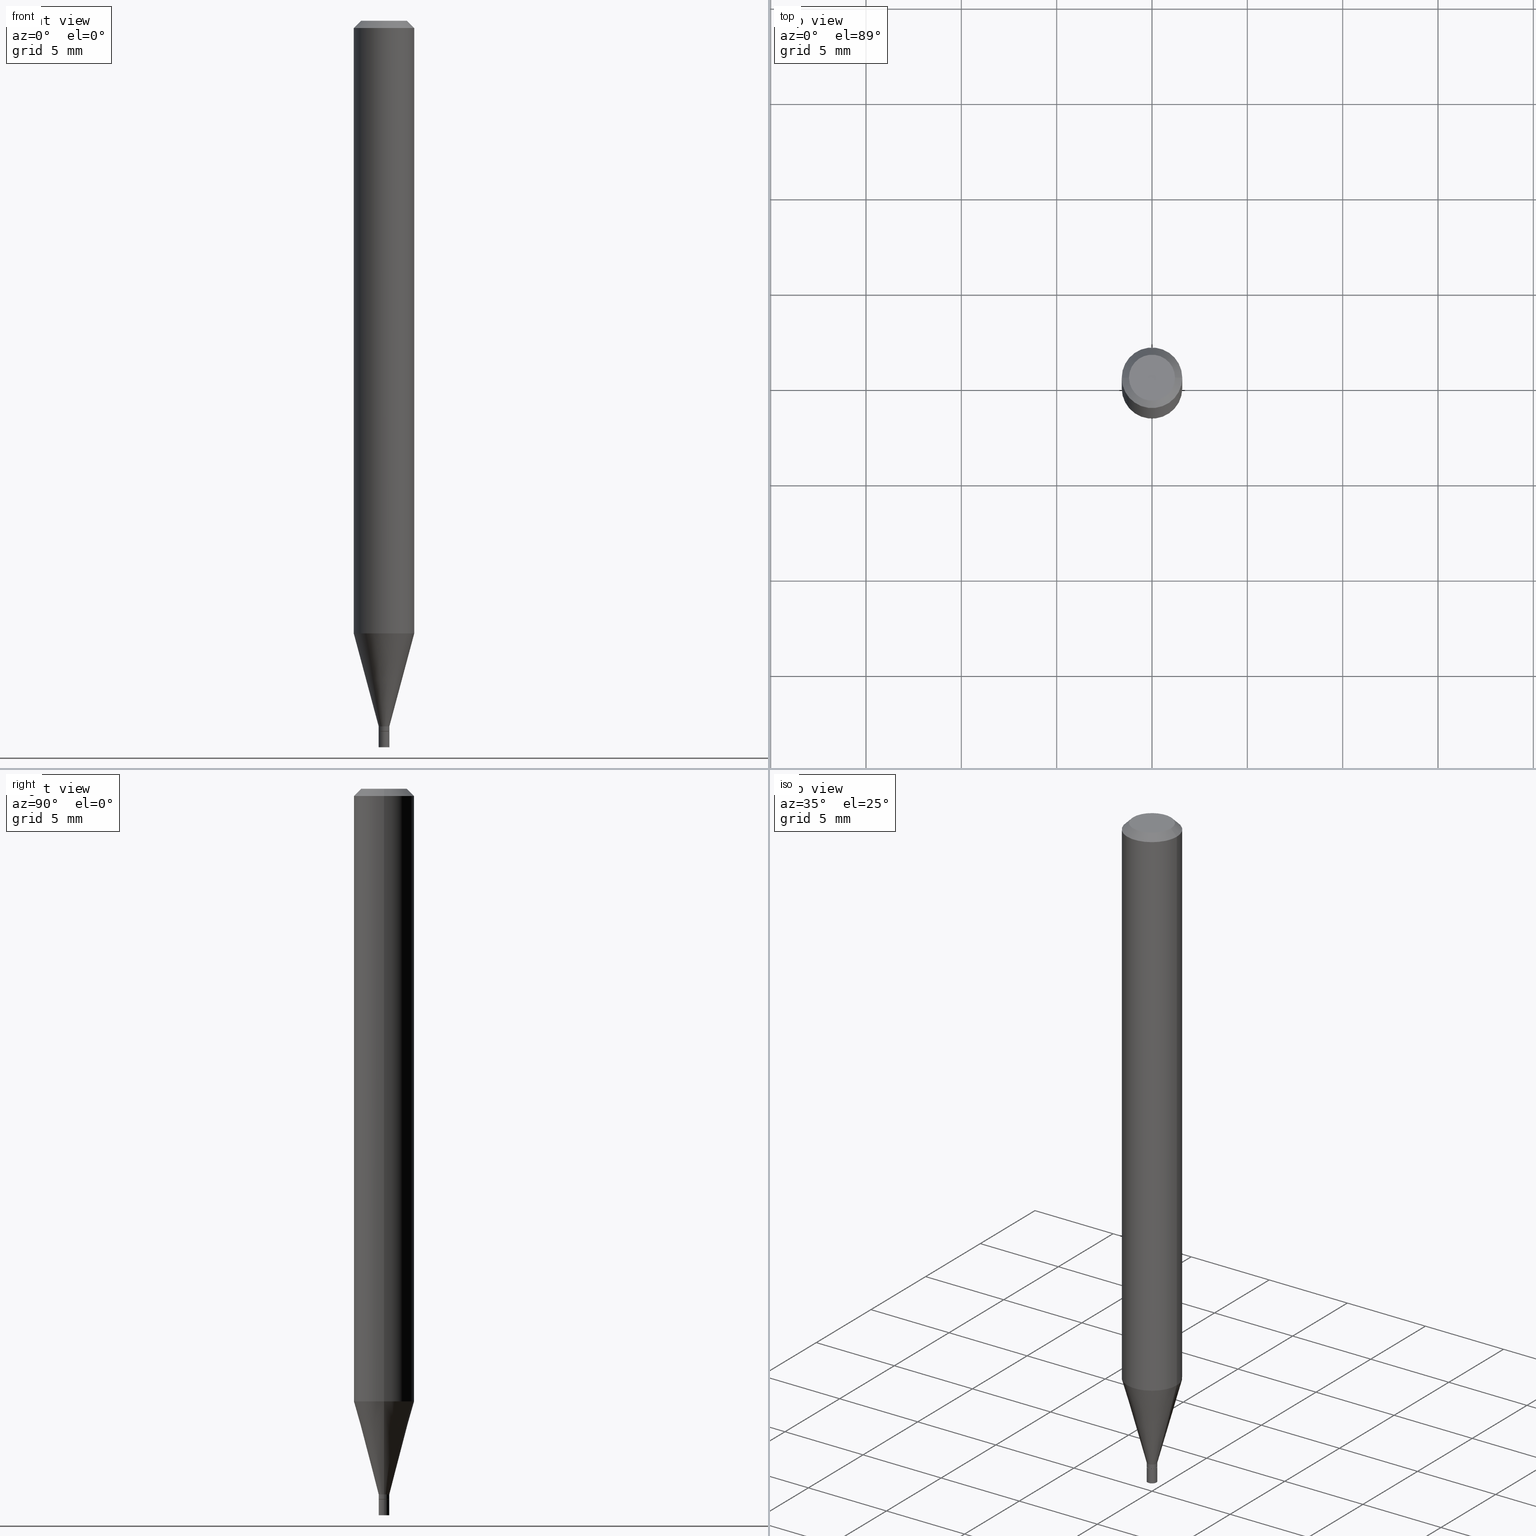
[diagram: canonical four-view strip — front | top / right | iso, engineering-drawing reading convention]
A machine part, canonical four-view strip (front | top / right | iso — engineering-drawing reading convention). The complete STEP part file that produces these views, byte-faithful:
ISO-10303-21;
HEADER;
FILE_DESCRIPTION (( 'STEP AP203' ),
    '1' );
FILE_NAME ('01102.STEP',
    '2024-03-19T22:55:37',
    ( '' ),
    ( '' ),
    'SwSTEP 2.0',
    'SolidWorks 2023',
    '' );
FILE_SCHEMA (( 'CONFIG_CONTROL_DESIGN' ));
ENDSEC;

DATA;
#1 = DIRECTION ( 'NONE',  ( 1.000000000000000000, -6.982962677686265922E-15, 4.876176775795936353E-29 ) ) ;
#2 = CARTESIAN_POINT ( 'NONE',  ( 3.587502738673595692E-29, -5.122003124082895786E-15, -1.467000000000000304 ) ) ;
#3 = LINE ( 'NONE', #109, #307 ) ;
#4 = CIRCLE ( 'NONE', #65, 0.01049999999999999892 ) ;
#5 = CC_DESIGN_SECURITY_CLASSIFICATION ( #430, ( #121 ) ) ;
#6 = ORIENTED_EDGE ( 'NONE', *, *, #397, .F. ) ;
#7 = DIRECTION ( 'NONE',  ( -2.445468806185136597E-29, 3.491481338843145583E-15, 1.000000000000000000 ) ) ;
#8 = EDGE_CURVE ( 'NONE', #72, #389, #338, .T. ) ;
#9 = ADVANCED_BREP_SHAPE_REPRESENTATION ( '01102', ( #213, #56, #275 ), #154 ) ;
#10 = DIRECTION ( 'NONE',  ( -0.7071067811865323627, 2.468850131082098105E-15, -0.7071067811865626718 ) ) ;
#11 = FACE_OUTER_BOUND ( 'NONE', #344, .T. ) ;
#12 = AXIS2_PLACEMENT_3D ( 'NONE', #89, #374, #52 ) ;
#13 = CARTESIAN_POINT ( 'NONE',  ( -0.01099999999999992130, -5.042097682479863192E-15, -1.466500000000000359 ) ) ;
#14 = ADVANCED_FACE ( 'NONE', ( #183 ), #438, .T. ) ;
#15 = CARTESIAN_POINT ( 'NONE',  ( -0.04749999999999999362, 3.578768372314221846E-16, 6.443424916547796954E-16 ) ) ;
#16 = PLANE ( 'NONE',  #416 ) ;
#17 = CONICAL_SURFACE ( 'NONE', #260, 0.01049999999999999892, 0.7853981633974718157 ) ;
#18 = DIRECTION ( 'NONE',  ( -2.445468806185136597E-29, 3.491481338843145583E-15, 1.000000000000000000 ) ) ;
#19 = ORIENTED_EDGE ( 'NONE', *, *, #143, .T. ) ;
#20 = EDGE_CURVE ( 'NONE', #419, #289, #420, .T. ) ;
#21 = PERSON_AND_ORGANIZATION ( #448, #196 ) ;
#22 = ORIENTED_EDGE ( 'NONE', *, *, #286, .F. ) ;
#23 = ORIENTED_EDGE ( 'NONE', *, *, #165, .F. ) ;
#24 = ORIENTED_EDGE ( 'NONE', *, *, #280, .T. ) ;
#25 = AXIS2_PLACEMENT_3D ( 'NONE', #343, #18, #410 ) ;
#26 = COORDINATED_UNIVERSAL_TIME_OFFSET ( 5, 0, .BEHIND. ) ;
#27 = ADVANCED_FACE ( 'NONE', ( #434 ), #17, .T. ) ;
#28 = ORIENTED_EDGE ( 'NONE', *, *, #306, .F. ) ;
#29 = CARTESIAN_POINT ( 'NONE',  ( 0.000000000000000000, 0.000000000000000000, 0.000000000000000000 ) ) ;
#30 = APPROVAL ( #447, 'UNSPECIFIED' ) ;
#31 = DIRECTION ( 'NONE',  ( -2.445468806185136597E-29, 3.491481338843145583E-15, 1.000000000000000000 ) ) ;
#32 = DIRECTION ( 'NONE',  ( 1.000000000000000000, -6.982962677686266711E-15, 4.876176775795935793E-29 ) ) ;
#33 = ORIENTED_EDGE ( 'NONE', *, *, #8, .T. ) ;
#34 = DIRECTION ( 'NONE',  ( -2.445468806185136877E-29, 3.491481338843145188E-15, 1.000000000000000000 ) ) ;
#35 = CONICAL_SURFACE ( 'NONE', #161, 0.01099999999999992130, 0.2617993877991500740 ) ;
#36 = ADVANCED_FACE ( 'NONE', ( #119 ), #247, .F. ) ;
#37 = PRODUCT_DEFINITION_SHAPE ( 'NONE', 'NONE',  #267 ) ;
#38 = CARTESIAN_POINT ( 'NONE',  ( 3.668203209277705088E-31, -5.237222008264718399E-17, -0.01499999999999999944 ) ) ;
#39 = CARTESIAN_POINT ( 'NONE',  ( 3.563048050611744147E-29, -5.087088310694462559E-15, -1.457000000000000073 ) ) ;
#40 = DIRECTION ( 'NONE',  ( 1.000000000000000000, -6.982962677686245411E-15, 0.000000000000000000 ) ) ;
#41 = CARTESIAN_POINT ( 'NONE',  ( 3.668203209277704895E-29, -5.237222008264718177E-15, -1.500000000000000222 ) ) ;
#42 = ORIENTED_EDGE ( 'NONE', *, *, #286, .T. ) ;
#43 = DIRECTION ( 'NONE',  ( -2.445468806185136597E-29, 3.491481338843145583E-15, 1.000000000000000000 ) ) ;
#44 = CLOSED_SHELL ( 'NONE', ( #219, #64, #55, #136, #210, #204, #83, #14, #323, #118, #27, #296 ) ) ;
#45 = CIRCLE ( 'NONE', #25, 0.06250000000000000000 ) ;
#46 = DIRECTION ( 'NONE',  ( 1.000000000000000000, -6.982962677686267499E-15, 4.852736867747366768E-29 ) ) ;
#47 = CC_DESIGN_DATE_AND_TIME_ASSIGNMENT ( #53, #236, ( #267 ) ) ;
#48 = DIRECTION ( 'NONE',  ( 1.000000000000000000, -6.982962677686295110E-15, 0.000000000000000000 ) ) ;
#49 = DIRECTION ( 'NONE',  ( -2.445468806185136877E-29, 3.491481338843145188E-15, 1.000000000000000000 ) ) ;
#50 = APPROVAL_PERSON_ORGANIZATION ( #199, #30, #171 ) ;
#51 = FACE_OUTER_BOUND ( 'NONE', #255, .T. ) ;
#52 = DIRECTION ( 'NONE',  ( 1.000000000000000000, -6.982962677686266711E-15, 4.876176775795935793E-29 ) ) ;
#53 = DATE_AND_TIME ( #454, #217 ) ;
#54 = DIRECTION ( 'NONE',  ( 1.000000000000000000, -6.982962677686265922E-15, 4.876176775795936353E-29 ) ) ;
#55 = ADVANCED_FACE ( 'NONE', ( #151 ), #383, .T. ) ;
#56 = MANIFOLD_SOLID_BREP ( 'Body-Move/Copy2[2]', #44 ) ;
#57 = PERSON_AND_ORGANIZATION_ROLE ( 'classification_officer' ) ;
#58 = CIRCLE ( 'NONE', #225, 0.01099999999999999936 ) ;
#59 = VERTEX_POINT ( 'NONE', #147 ) ;
#60 = PERSON_AND_ORGANIZATION ( #448, #196 ) ;
#61 = EDGE_LOOP ( 'NONE', ( #271, #459, #314, #381 ) ) ;
#62 = APPLICATION_CONTEXT ( 'configuration controlled 3d designs of mechanical parts and assemblies' ) ;
#63 = ORIENTED_EDGE ( 'NONE', *, *, #409, .T. ) ;
#64 = ADVANCED_FACE ( 'NONE', ( #287 ), #85, .T. ) ;
#65 = AXIS2_PLACEMENT_3D ( 'NONE', #290, #464, #361 ) ;
#66 = ORIENTED_EDGE ( 'NONE', *, *, #178, .T. ) ;
#67 = CYLINDRICAL_SURFACE ( 'NONE', #99, 0.06250000000000000000 ) ;
#68 = CYLINDRICAL_SURFACE ( 'NONE', #209, 0.01099999999999992130 ) ;
#69 = CARTESIAN_POINT ( 'NONE',  ( 3.668203209277705088E-31, -5.237222008264718399E-17, -0.01499999999999999944 ) ) ;
#70 = EDGE_CURVE ( 'NONE', #169, #422, #58, .T. ) ;
#71 = DIRECTION ( 'NONE',  ( -2.445468806185136877E-29, 3.491481338843145188E-15, 1.000000000000000000 ) ) ;
#72 = VERTEX_POINT ( 'NONE', #189 ) ;
#73 = CLOSED_SHELL ( 'NONE', ( #248, #36, #318, #231 ) ) ;
#74 = CC_DESIGN_PERSON_AND_ORGANIZATION_ASSIGNMENT ( #376, #313, ( #267 ) ) ;
#75 = FACE_OUTER_BOUND ( 'NONE', #149, .T. ) ;
#76 = CIRCLE ( 'NONE', #358, 0.01099999999999992130 ) ;
#77 = DIRECTION ( 'NONE',  ( 2.445468806185136597E-29, -3.491481338843145583E-15, -1.000000000000000000 ) ) ;
#78 = CARTESIAN_POINT ( 'NONE',  ( 0.06250000000000000000, -4.811533449433679005E-16, -0.01499999999999999944 ) ) ;
#79 = EDGE_LOOP ( 'NONE', ( #312, #460, #133, #320 ) ) ;
#80 = DIRECTION ( 'NONE',  ( -1.000000000000000000, 6.982962677686265922E-15, -4.876176775795935793E-29 ) ) ;
#81 = DIMENSIONAL_EXPONENTS ( 1.000000000000000000, 0.000000000000000000, 0.000000000000000000, 0.000000000000000000, 0.000000000000000000, 0.000000000000000000, 0.000000000000000000 ) ;
#82 = APPLICATION_CONTEXT ( 'configuration controlled 3d designs of mechanical parts and assemblies' ) ;
#83 = ADVANCED_FACE ( 'NONE', ( #431 ), #67, .T. ) ;
#84 = DIRECTION ( 'NONE',  ( 1.000000000000000000, -6.982962677686266711E-15, 4.876176775795935793E-29 ) ) ;
#85 = CONICAL_SURFACE ( 'NONE', #115, 0.01049999999999999892, 0.7853981633974718157 ) ;
#86 = CIRCLE ( 'NONE', #238, 0.01099999999999999936 ) ;
#87 = DIRECTION ( 'NONE',  ( 1.000000000000000000, -6.982962677686267499E-15, 4.852736867747366768E-29 ) ) ;
#88 =( NAMED_UNIT ( * ) SI_UNIT ( $, .STERADIAN. ) SOLID_ANGLE_UNIT ( ) );
#89 = CARTESIAN_POINT ( 'NONE',  ( 0.000000000000000000, 0.000000000000000000, 0.000000000000000000 ) ) ;
#90 = EDGE_CURVE ( 'NONE', #273, #59, #341, .T. ) ;
#91 = DIRECTION ( 'NONE',  ( -2.445468806185136597E-29, 3.491481338843145583E-15, 1.000000000000000000 ) ) ;
#92 = CONICAL_SURFACE ( 'NONE', #182, 0.01099999999999992130, 0.2617993877991500740 ) ;
#93 = DIRECTION ( 'NONE',  ( 1.000000000000000000, -6.982962677686295110E-15, 0.000000000000000000 ) ) ;
#94 = COORDINATED_UNIVERSAL_TIME_OFFSET ( 5, 0, .BEHIND. ) ;
#95 = CARTESIAN_POINT ( 'NONE',  ( -0.01049999999999999892, -5.044746909653973604E-15, -1.467000000000000304 ) ) ;
#96 = PRODUCT ( '01102', '01102', '', ( #241 ) ) ;
#97 = DATE_AND_TIME ( #132, #283 ) ;
#98 = VERTEX_POINT ( 'NONE', #440 ) ;
#99 = AXIS2_PLACEMENT_3D ( 'NONE', #299, #91, #84 ) ;
#100 = ORIENTED_EDGE ( 'NONE', *, *, #188, .F. ) ;
#101 = CALENDAR_DATE ( 2024, 19, 3 ) ;
#102 = ORIENTED_EDGE ( 'NONE', *, *, #364, .F. ) ;
#103 = EDGE_CURVE ( 'NONE', #351, #105, #76, .T. ) ;
#104 = DATE_AND_TIME ( #101, #316 ) ;
#105 = VERTEX_POINT ( 'NONE', #13 ) ;
#106 = AXIS2_PLACEMENT_3D ( 'NONE', #251, #426, #294 ) ;
#107 = EDGE_LOOP ( 'NONE', ( #23, #19, #240, #380 ) ) ;
#108 = DIRECTION ( 'NONE',  ( -2.445468806185136597E-29, 3.491481338843145583E-15, 1.000000000000000000 ) ) ;
#109 = CARTESIAN_POINT ( 'NONE',  ( 0.01049999999999999892, -5.195324232198601302E-15, -1.467000000000000304 ) ) ;
#110 = DIRECTION ( 'NONE',  ( -1.000000000000000000, 6.982962677686266711E-15, 0.000000000000000000 ) ) ;
#111 = APPLICATION_PROTOCOL_DEFINITION ( 'international standard', 'config_control_design', 1994, #62 ) ;
#112 = DIRECTION ( 'NONE',  ( 1.000000000000000000, -6.982962677686295110E-15, 0.000000000000000000 ) ) ;
#113 = VERTEX_POINT ( 'NONE', #195 ) ;
#114 = DIRECTION ( 'NONE',  ( 1.000000000000000000, -6.982962677686245411E-15, 0.000000000000000000 ) ) ;
#115 = AXIS2_PLACEMENT_3D ( 'NONE', #211, #391, #292 ) ;
#116 = EDGE_LOOP ( 'NONE', ( #216, #145, #284, #395 ) ) ;
#117 = CYLINDRICAL_SURFACE ( 'NONE', #242, 0.01099999999999999936 ) ;
#118 = ADVANCED_FACE ( 'NONE', ( #123 ), #298, .F. ) ;
#119 = FACE_OUTER_BOUND ( 'NONE', #205, .T. ) ;
#120 = CARTESIAN_POINT ( 'NONE',  ( 3.563048050611744147E-29, -5.087088310694462559E-15, -1.457000000000000073 ) ) ;
#121 = PRODUCT_DEFINITION_FORMATION_WITH_SPECIFIED_SOURCE ( 'ANY', '', #96, .NOT_KNOWN. ) ;
#122 = EDGE_CURVE ( 'NONE', #131, #389, #162, .T. ) ;
#123 = FACE_OUTER_BOUND ( 'NONE', #257, .T. ) ;
#124 = DIRECTION ( 'NONE',  ( -2.445468806185136877E-29, 3.491481338843145188E-15, 1.000000000000000000 ) ) ;
#125 = APPROVAL ( #202, 'UNSPECIFIED' ) ;
#126 = CARTESIAN_POINT ( 'NONE',  ( -0.06250000000000000000, 4.440892098500626162E-16, -3.074334431409316114E-30 ) ) ;
#127 = AXIS2_PLACEMENT_3D ( 'NONE', #302, #157, #193 ) ;
#128 = COORDINATED_UNIVERSAL_TIME_OFFSET ( 5, 0, .BEHIND. ) ;
#129 = CARTESIAN_POINT ( 'NONE',  ( -1.575719463841376315E-44, 2.249709785436367094E-30, 6.443424916547820620E-16 ) ) ;
#130 = CALENDAR_DATE ( 2024, 19, 3 ) ;
#131 = VERTEX_POINT ( 'NONE', #15 ) ;
#132 = CALENDAR_DATE ( 2024, 19, 3 ) ;
#133 = ORIENTED_EDGE ( 'NONE', *, *, #103, .F. ) ;
#134 = DATE_AND_TIME ( #451, #184 ) ;
#135 = AXIS2_PLACEMENT_3D ( 'NONE', #69, #31, #362 ) ;
#136 = ADVANCED_FACE ( 'NONE', ( #51 ), #197, .T. ) ;
#137 = CC_DESIGN_APPROVAL ( #30, ( #267 ) ) ;
#138 = ORIENTED_EDGE ( 'NONE', *, *, #188, .T. ) ;
#139 = DIRECTION ( 'NONE',  ( 0.000000000000000000, 0.000000000000000000, 1.000000000000000000 ) ) ;
#140 = APPROVAL_STATUS ( 'not_yet_approved' ) ;
#141 = ORIENTED_EDGE ( 'NONE', *, *, #364, .T. ) ;
#142 = DIRECTION ( 'NONE',  ( 1.000000000000000000, 0.000000000000000000, 0.000000000000000000 ) ) ;
#143 = EDGE_CURVE ( 'NONE', #155, #59, #266, .T. ) ;
#144 = VECTOR ( 'NONE', #124, 39.37007874015748143 ) ;
#145 = ORIENTED_EDGE ( 'NONE', *, *, #301, .T. ) ;
#146 = DIRECTION ( 'NONE',  ( -2.445468806185136597E-29, 3.491481338843145583E-15, 1.000000000000000000 ) ) ;
#147 = CARTESIAN_POINT ( 'NONE',  ( 0.06250000000000000000, -4.852458611912431766E-15, -1.264799383410203149 ) ) ;
#148 = LINE ( 'NONE', #461, #359 ) ;
#149 = EDGE_LOOP ( 'NONE', ( #458, #66 ) ) ;
#150 = DIRECTION ( 'NONE',  ( -2.445468806185136597E-29, 3.491481338843145583E-15, 1.000000000000000000 ) ) ;
#151 = FACE_OUTER_BOUND ( 'NONE', #243, .T. ) ;
#152 = CARTESIAN_POINT ( 'NONE',  ( 3.587502738673595692E-29, -5.122003124082895786E-15, -1.467000000000000304 ) ) ;
#153 = CIRCLE ( 'NONE', #408, 0.01099999999999999936 ) ;
#154 =( GEOMETRIC_REPRESENTATION_CONTEXT ( 3 ) GLOBAL_UNCERTAINTY_ASSIGNED_CONTEXT ( ( #385 ) ) GLOBAL_UNIT_ASSIGNED_CONTEXT ( ( #297, #258, #88 ) ) REPRESENTATION_CONTEXT ( 'NONE', 'WORKASPACE' ) );
#155 = VERTEX_POINT ( 'NONE', #442 ) ;
#156 = CARTESIAN_POINT ( 'NONE',  ( 0.01099999999999999936, -7.681258945454891804E-17, 5.363794453375529652E-31 ) ) ;
#157 = DIRECTION ( 'NONE',  ( -2.445468806185136597E-29, 3.491481338843145583E-15, 1.000000000000000000 ) ) ;
#158 = EDGE_CURVE ( 'NONE', #59, #155, #166, .T. ) ;
#159 = CARTESIAN_POINT ( 'NONE',  ( 0.000000000000000000, 0.000000000000000000, 0.000000000000000000 ) ) ;
#160 = LENGTH_MEASURE_WITH_UNIT ( LENGTH_MEASURE( 0.02539999999999999897 ), #357 );
#161 = AXIS2_PLACEMENT_3D ( 'NONE', #120, #232, #93 ) ;
#162 = LINE ( 'NONE', #372, #274 ) ;
#163 = DIRECTION ( 'NONE',  ( -2.445468806185136597E-29, 3.491481338843145583E-15, 1.000000000000000000 ) ) ;
#164 = CARTESIAN_POINT ( 'NONE',  ( 7.681258945458479888E-17, 0.01099999999999487672, -1.467000000000000304 ) ) ;
#165 = EDGE_CURVE ( 'NONE', #155, #389, #441, .T. ) ;
#166 = CIRCLE ( 'NONE', #127, 0.06250000000000000000 ) ;
#167 = AXIS2_PLACEMENT_3D ( 'NONE', #39, #187, #288 ) ;
#168 = DIRECTION ( 'NONE',  ( -2.445468806185136597E-29, 3.491481338843145583E-15, 1.000000000000000000 ) ) ;
#169 = VERTEX_POINT ( 'NONE', #262 ) ;
#170 = ORIENTED_EDGE ( 'NONE', *, *, #237, .F. ) ;
#171 = APPROVAL_ROLE ( '' ) ;
#172 = ORIENTED_EDGE ( 'NONE', *, *, #20, .T. ) ;
#173 = PERSON_AND_ORGANIZATION ( #448, #196 ) ;
#174 = PRODUCT_RELATED_PRODUCT_CATEGORY ( 'detail', '', ( #96 ) ) ;
#175 = PERSON_AND_ORGANIZATION ( #448, #196 ) ;
#176 = CIRCLE ( 'NONE', #250, 0.04749999999999999362 ) ;
#177 = EDGE_LOOP ( 'NONE', ( #100, #24, #63, #355 ) ) ;
#178 = EDGE_CURVE ( 'NONE', #113, #131, #378, .T. ) ;
#179 = ORIENTED_EDGE ( 'NONE', *, *, #20, .F. ) ;
#180 = DIRECTION ( 'NONE',  ( 0.7071067811865323627, -7.319954787623203981E-15, -0.7071067811865626718 ) ) ;
#181 = APPROVAL_DATE_TIME ( #104, #206 ) ;
#182 = AXIS2_PLACEMENT_3D ( 'NONE', #224, #337, #263 ) ;
#183 = FACE_OUTER_BOUND ( 'NONE', #279, .T. ) ;
#184 = LOCAL_TIME ( 18, 55, 37.00000000000000000, #346 ) ;
#185 = DIRECTION ( 'NONE',  ( -2.445468806185136597E-29, 3.491481338843145583E-15, 1.000000000000000000 ) ) ;
#186 = CARTESIAN_POINT ( 'NONE',  ( 3.668203209277704895E-29, -5.237222008264718177E-15, -1.500000000000000222 ) ) ;
#187 = DIRECTION ( 'NONE',  ( -2.445468806185136597E-29, 3.491481338843145583E-15, 1.000000000000000000 ) ) ;
#188 = EDGE_CURVE ( 'NONE', #105, #98, #259, .T. ) ;
#189 = CARTESIAN_POINT ( 'NONE',  ( 0.06250000000000000000, -4.888073874380388472E-16, -0.01499999999999999944 ) ) ;
#190 = DIRECTION ( 'NONE',  ( 2.438088387897960049E-29, -3.491481338843145188E-15, -1.000000000000000000 ) ) ;
#191 = ORIENTED_EDGE ( 'NONE', *, *, #178, .F. ) ;
#192 = DIRECTION ( 'NONE',  ( -2.445468806185136877E-29, 3.491481338843145188E-15, 1.000000000000000000 ) ) ;
#193 = DIRECTION ( 'NONE',  ( 1.000000000000000000, -6.982962677686262766E-15, 0.000000000000000000 ) ) ;
#194 = CARTESIAN_POINT ( 'NONE',  ( 3.093027438211846075E-29, -4.416023444557040885E-15, -1.264799383410203149 ) ) ;
#195 = CARTESIAN_POINT ( 'NONE',  ( 0.04749999999999999362, -4.035134999187566790E-16, 6.443424916547846258E-16 ) ) ;
#196 = ORGANIZATION ( 'UNSPECIFIED', 'UNSPECIFIED', '' ) ;
#197 = CYLINDRICAL_SURFACE ( 'NONE', #300, 0.06250000000000000000 ) ;
#198 = CARTESIAN_POINT ( 'NONE',  ( -0.01099999999999992130, 7.815970093361046124E-17, -5.410828599280358539E-31 ) ) ;
#199 = PERSON_AND_ORGANIZATION ( #448, #196 ) ;
#200 = FACE_OUTER_BOUND ( 'NONE', #220, .T. ) ;
#201 = ORIENTED_EDGE ( 'NONE', *, *, #465, .F. ) ;
#202 = APPROVAL_STATUS ( 'not_yet_approved' ) ;
#203 = ORIENTED_EDGE ( 'NONE', *, *, #122, .T. ) ;
#204 = ADVANCED_FACE ( 'NONE', ( #227 ), #92, .T. ) ;
#205 = EDGE_LOOP ( 'NONE', ( #352, #22 ) ) ;
#206 = APPROVAL ( #140, 'UNSPECIFIED' ) ;
#207 = DATE_AND_TIME ( #130, #379 ) ;
#208 = EDGE_LOOP ( 'NONE', ( #6, #42, #398, #179 ) ) ;
#209 = AXIS2_PLACEMENT_3D ( 'NONE', #331, #7, #32 ) ;
#210 = ADVANCED_FACE ( 'NONE', ( #407 ), #35, .T. ) ;
#211 = CARTESIAN_POINT ( 'NONE',  ( 3.587502738673595692E-29, -5.122003124082895786E-15, -1.467000000000000304 ) ) ;
#212 = CARTESIAN_POINT ( 'NONE',  ( -0.01099999999999999936, -5.101452865240196680E-15, -1.500000000000000222 ) ) ;
#213 = MANIFOLD_SOLID_BREP ( 'Body-Move/Copy2[1]', #73 ) ;
#214 = ORIENTED_EDGE ( 'NONE', *, *, #165, .T. ) ;
#215 = DIRECTION ( 'NONE',  ( 1.000000000000000000, -6.982962677686245411E-15, 0.000000000000000000 ) ) ;
#216 = ORIENTED_EDGE ( 'NONE', *, *, #401, .T. ) ;
#217 = LOCAL_TIME ( 18, 55, 37.00000000000000000, #128 ) ;
#218 = CARTESIAN_POINT ( 'NONE',  ( -0.01099999999999992130, -5.008928609760852258E-15, -1.457000000000000073 ) ) ;
#219 = ADVANCED_FACE ( 'NONE', ( #11 ), #403, .T. ) ;
#220 = EDGE_LOOP ( 'NONE', ( #319, #455, #310, #415 ) ) ;
#221 = LINE ( 'NONE', #433, #345 ) ;
#222 = ORIENTED_EDGE ( 'NONE', *, *, #409, .F. ) ;
#223 = DIRECTION ( 'NONE',  ( -0.2588190451025213501, 5.211531920934551042E-15, 0.9659258262890682012 ) ) ;
#224 = CARTESIAN_POINT ( 'NONE',  ( 3.563048050611744147E-29, -5.087088310694462559E-15, -1.457000000000000073 ) ) ;
#225 = AXIS2_PLACEMENT_3D ( 'NONE', #186, #328, #40 ) ;
#226 = APPROVAL_PERSON_ORGANIZATION ( #276, #206, #278 ) ;
#227 = FACE_OUTER_BOUND ( 'NONE', #61, .T. ) ;
#228 = DIRECTION ( 'NONE',  ( -2.445468806185136597E-29, 3.491481338843145583E-15, 1.000000000000000000 ) ) ;
#229 = DIRECTION ( 'NONE',  ( -2.438088387897960049E-29, 3.491481338843145188E-15, 1.000000000000000000 ) ) ;
#230 = AXIS2_PLACEMENT_3D ( 'NONE', #269, #375, #309 ) ;
#231 = ADVANCED_FACE ( 'NONE', ( #342 ), #16, .F. ) ;
#232 = DIRECTION ( 'NONE',  ( -2.445468806185136597E-29, 3.491481338843145583E-15, 1.000000000000000000 ) ) ;
#233 = CC_DESIGN_PERSON_AND_ORGANIZATION_ASSIGNMENT ( #60, #308, ( #121 ) ) ;
#234 = PERSON_AND_ORGANIZATION_ROLE ( 'creator' ) ;
#235 = CYLINDRICAL_SURFACE ( 'NONE', #429, 0.01099999999999999936 ) ;
#236 = DATE_TIME_ROLE ( 'creation_date' ) ;
#237 = EDGE_CURVE ( 'NONE', #131, #113, #176, .T. ) ;
#238 = AXIS2_PLACEMENT_3D ( 'NONE', #152, #150, #114 ) ;
#239 = VERTEX_POINT ( 'NONE', #95 ) ;
#240 = ORIENTED_EDGE ( 'NONE', *, *, #465, .T. ) ;
#241 = MECHANICAL_CONTEXT ( 'NONE', #82, 'mechanical' ) ;
#242 = AXIS2_PLACEMENT_3D ( 'NONE', #329, #428, #1 ) ;
#243 = EDGE_LOOP ( 'NONE', ( #191, #141, #33, #281 ) ) ;
#244 = CARTESIAN_POINT ( 'NONE',  ( 3.316907271900976096E-16, 0.04749999999999999362, 1.563258822323416346E-16 ) ) ;
#245 = DIRECTION ( 'NONE',  ( 1.000000000000000000, -6.982962677686265922E-15, 4.876176775795935793E-29 ) ) ;
#246 = LINE ( 'NONE', #78, #439 ) ;
#247 = PLANE ( 'NONE',  #282 ) ;
#248 = ADVANCED_FACE ( 'NONE', ( #200 ), #235, .T. ) ;
#249 = CARTESIAN_POINT ( 'NONE',  ( 0.01099999999999992130, -7.681258945454838802E-17, 5.363794453375491117E-31 ) ) ;
#250 = AXIS2_PLACEMENT_3D ( 'NONE', #129, #400, #46 ) ;
#251 = CARTESIAN_POINT ( 'NONE',  ( 3.668203209277705088E-31, -5.237222008264718399E-17, -0.01499999999999999944 ) ) ;
#252 = APPROVAL_PERSON_ORGANIZATION ( #317, #125, #311 ) ;
#253 = DIRECTION ( 'NONE',  ( 1.000000000000000000, -6.982962677686287221E-15, 0.000000000000000000 ) ) ;
#254 = SHAPE_DEFINITION_REPRESENTATION ( #37, #9 ) ;
#255 = EDGE_LOOP ( 'NONE', ( #333, #214, #386, #201 ) ) ;
#256 = CARTESIAN_POINT ( 'NONE',  ( 0.01099999999999992130, -5.197069972868022806E-15, -1.466500000000000359 ) ) ;
#257 = EDGE_LOOP ( 'NONE', ( #28, #321 ) ) ;
#258 =( NAMED_UNIT ( * ) PLANE_ANGLE_UNIT ( ) SI_UNIT ( $, .RADIAN. ) );
#259 = LINE ( 'NONE', #198, #144 ) ;
#260 = AXIS2_PLACEMENT_3D ( 'NONE', #2, #108, #326 ) ;
#261 = VECTOR ( 'NONE', #34, 39.37007874015748143 ) ;
#262 = CARTESIAN_POINT ( 'NONE',  ( 0.01099999999999999936, -5.314034597719267489E-15, -1.500000000000000222 ) ) ;
#263 = DIRECTION ( 'NONE',  ( 1.000000000000000000, -6.982962677686295110E-15, 0.000000000000000000 ) ) ;
#264 = EDGE_CURVE ( 'NONE', #98, #273, #315, .T. ) ;
#265 = DIRECTION ( 'NONE',  ( 1.000000000000000000, -6.982962677686266711E-15, 4.876176775795935793E-29 ) ) ;
#266 = CIRCLE ( 'NONE', #324, 0.06250000000000000000 ) ;
#267 = PRODUCT_DEFINITION ( 'UNKNOWN', '', #121, #404 ) ;
#268 = APPROVAL_DATE_TIME ( #207, #125 ) ;
#269 = CARTESIAN_POINT ( 'NONE',  ( 3.563048050611744147E-29, -5.087088310694462559E-15, -1.457000000000000073 ) ) ;
#270 = EDGE_CURVE ( 'NONE', #389, #72, #45, .T. ) ;
#271 = ORIENTED_EDGE ( 'NONE', *, *, #301, .F. ) ;
#272 = APPROVAL_DATE_TIME ( #97, #30 ) ;
#273 = VERTEX_POINT ( 'NONE', #388 ) ;
#274 = VECTOR ( 'NONE', #10, 39.37007874015748143 ) ;
#275 = AXIS2_PLACEMENT_3D ( 'NONE', #29, #139, #142 ) ;
#276 = PERSON_AND_ORGANIZATION ( #448, #196 ) ;
#277 = ORIENTED_EDGE ( 'NONE', *, *, #270, .T. ) ;
#278 = APPROVAL_ROLE ( '' ) ;
#279 = EDGE_LOOP ( 'NONE', ( #102, #170, #203, #277 ) ) ;
#280 = EDGE_CURVE ( 'NONE', #105, #351, #291, .T. ) ;
#281 = ORIENTED_EDGE ( 'NONE', *, *, #122, .F. ) ;
#282 = AXIS2_PLACEMENT_3D ( 'NONE', #466, #463, #245 ) ;
#283 = LOCAL_TIME ( 18, 55, 37.00000000000000000, #94 ) ;
#284 = ORIENTED_EDGE ( 'NONE', *, *, #158, .F. ) ;
#285 = DIRECTION ( 'NONE',  ( -0.7071067811865642261, 7.493145998870414114E-15, 0.7071067811865309194 ) ) ;
#286 = EDGE_CURVE ( 'NONE', #422, #169, #153, .T. ) ;
#287 = FACE_OUTER_BOUND ( 'NONE', #79, .T. ) ;
#288 = DIRECTION ( 'NONE',  ( 1.000000000000000000, -6.982962677686295110E-15, 0.000000000000000000 ) ) ;
#289 = VERTEX_POINT ( 'NONE', #392 ) ;
#290 = CARTESIAN_POINT ( 'NONE',  ( 3.587502738673595692E-29, -5.122003124082895786E-15, -1.467000000000000304 ) ) ;
#291 = CIRCLE ( 'NONE', #350, 0.01099999999999992130 ) ;
#292 = DIRECTION ( 'NONE',  ( 1.000000000000000000, -6.982962677686287221E-15, 0.000000000000000000 ) ) ;
#293 = CARTESIAN_POINT ( 'NONE',  ( -0.01099999999999999936, -5.101452865240196680E-15, -1.467000000000000304 ) ) ;
#294 = DIRECTION ( 'NONE',  ( -1.000000000000000000, 6.982962677686266711E-15, 0.000000000000000000 ) ) ;
#295 = LINE ( 'NONE', #363, #340 ) ;
#296 = ADVANCED_FACE ( 'NONE', ( #322 ), #68, .T. ) ;
#297 =( CONVERSION_BASED_UNIT ( 'INCH', #160 ) LENGTH_UNIT ( ) NAMED_UNIT ( #81 ) );
#298 = PLANE ( 'NONE',  #332 ) ;
#299 = CARTESIAN_POINT ( 'NONE',  ( 0.000000000000000000, 0.000000000000000000, 0.000000000000000000 ) ) ;
#300 = AXIS2_PLACEMENT_3D ( 'NONE', #159, #402, #265 ) ;
#301 = EDGE_CURVE ( 'NONE', #98, #155, #435, .T. ) ;
#302 = CARTESIAN_POINT ( 'NONE',  ( 3.093027438211846075E-29, -4.416023444557040885E-15, -1.264799383410203149 ) ) ;
#303 = CARTESIAN_POINT ( 'NONE',  ( 0.01099999999999992130, -5.163900900149011871E-15, -1.457000000000000073 ) ) ;
#304 = DIRECTION ( 'NONE',  ( 2.438088387897960049E-29, -3.491481338843145188E-15, -1.000000000000000000 ) ) ;
#305 = AXIS2_PLACEMENT_3D ( 'NONE', #330, #360, #424 ) ;
#306 = EDGE_CURVE ( 'NONE', #452, #239, #4, .T. ) ;
#307 = VECTOR ( 'NONE', #327, 39.37007874015748143 ) ;
#308 = PERSON_AND_ORGANIZATION_ROLE ( 'design_supplier' ) ;
#309 = DIRECTION ( 'NONE',  ( 1.000000000000000000, -6.982962677686295110E-15, 0.000000000000000000 ) ) ;
#310 = ORIENTED_EDGE ( 'NONE', *, *, #414, .F. ) ;
#311 = APPROVAL_ROLE ( '' ) ;
#312 = ORIENTED_EDGE ( 'NONE', *, *, #306, .T. ) ;
#313 = PERSON_AND_ORGANIZATION_ROLE ( 'creator' ) ;
#314 = ORIENTED_EDGE ( 'NONE', *, *, #90, .T. ) ;
#315 = CIRCLE ( 'NONE', #230, 0.01099999999999992130 ) ;
#316 = LOCAL_TIME ( 18, 55, 37.00000000000000000, #417 ) ;
#317 = PERSON_AND_ORGANIZATION ( #448, #196 ) ;
#318 = ADVANCED_FACE ( 'NONE', ( #356 ), #117, .T. ) ;
#319 = ORIENTED_EDGE ( 'NONE', *, *, #70, .T. ) ;
#320 = ORIENTED_EDGE ( 'NONE', *, *, #353, .F. ) ;
#321 = ORIENTED_EDGE ( 'NONE', *, *, #427, .F. ) ;
#322 = FACE_OUTER_BOUND ( 'NONE', #177, .T. ) ;
#323 = ADVANCED_FACE ( 'NONE', ( #75 ), #423, .F. ) ;
#324 = AXIS2_PLACEMENT_3D ( 'NONE', #194, #163, #371 ) ;
#325 = AXIS2_PLACEMENT_3D ( 'NONE', #399, #185, #253 ) ;
#326 = DIRECTION ( 'NONE',  ( 1.000000000000000000, -6.982962677686287221E-15, 0.000000000000000000 ) ) ;
#327 = DIRECTION ( 'NONE',  ( 0.7071067811865642261, -2.468850131082431399E-15, 0.7071067811865309194 ) ) ;
#328 = DIRECTION ( 'NONE',  ( -2.445468806185136597E-29, 3.491481338843145583E-15, 1.000000000000000000 ) ) ;
#329 = CARTESIAN_POINT ( 'NONE',  ( 0.000000000000000000, 0.000000000000000000, 0.000000000000000000 ) ) ;
#330 = CARTESIAN_POINT ( 'NONE',  ( 3.587502738673595692E-29, -5.122003124082895786E-15, -1.467000000000000304 ) ) ;
#331 = CARTESIAN_POINT ( 'NONE',  ( 0.000000000000000000, 0.000000000000000000, 0.000000000000000000 ) ) ;
#332 = AXIS2_PLACEMENT_3D ( 'NONE', #370, #229, #339 ) ;
#333 = ORIENTED_EDGE ( 'NONE', *, *, #158, .T. ) ;
#334 = EDGE_CURVE ( 'NONE', #239, #105, #148, .T. ) ;
#335 = LINE ( 'NONE', #156, #261 ) ;
#336 = DIRECTION ( 'NONE',  ( -2.445468806185136597E-29, 3.491481338843145583E-15, 1.000000000000000000 ) ) ;
#337 = DIRECTION ( 'NONE',  ( -2.445468806185136597E-29, 3.491481338843145583E-15, 1.000000000000000000 ) ) ;
#338 = CIRCLE ( 'NONE', #135, 0.06250000000000000000 ) ;
#339 = DIRECTION ( 'NONE',  ( 1.000000000000000000, -6.982962677686265922E-15, 4.876176775795935793E-29 ) ) ;
#340 = VECTOR ( 'NONE', #71, 39.37007874015748143 ) ;
#341 = LINE ( 'NONE', #303, #462 ) ;
#342 = FACE_OUTER_BOUND ( 'NONE', #412, .T. ) ;
#343 = CARTESIAN_POINT ( 'NONE',  ( 3.668203209277705088E-31, -5.237222008264718399E-17, -0.01499999999999999944 ) ) ;
#344 = EDGE_LOOP ( 'NONE', ( #450, #138, #348, #222 ) ) ;
#345 = VECTOR ( 'NONE', #354, 39.37007874015748143 ) ;
#346 = COORDINATED_UNIVERSAL_TIME_OFFSET ( 5, 0, .BEHIND. ) ;
#347 = ORIENTED_EDGE ( 'NONE', *, *, #414, .T. ) ;
#348 = ORIENTED_EDGE ( 'NONE', *, *, #401, .F. ) ;
#349 = ORIENTED_EDGE ( 'NONE', *, *, #427, .T. ) ;
#350 = AXIS2_PLACEMENT_3D ( 'NONE', #425, #43, #112 ) ;
#351 = VERTEX_POINT ( 'NONE', #256 ) ;
#352 = ORIENTED_EDGE ( 'NONE', *, *, #70, .F. ) ;
#353 = EDGE_CURVE ( 'NONE', #452, #351, #3, .T. ) ;
#354 = DIRECTION ( 'NONE',  ( -2.445468806185136877E-29, 3.491481338843145188E-15, 1.000000000000000000 ) ) ;
#355 = ORIENTED_EDGE ( 'NONE', *, *, #264, .F. ) ;
#356 = FACE_OUTER_BOUND ( 'NONE', #208, .T. ) ;
#357 =( LENGTH_UNIT ( ) NAMED_UNIT ( * ) SI_UNIT ( $, .METRE. ) );
#358 = AXIS2_PLACEMENT_3D ( 'NONE', #405, #228, #48 ) ;
#359 = VECTOR ( 'NONE', #285, 39.37007874015748143 ) ;
#360 = DIRECTION ( 'NONE',  ( -2.445468806185136597E-29, 3.491481338843145583E-15, 1.000000000000000000 ) ) ;
#361 = DIRECTION ( 'NONE',  ( 1.000000000000000000, -6.982962677686287221E-15, 0.000000000000000000 ) ) ;
#362 = DIRECTION ( 'NONE',  ( 1.000000000000000000, -6.982962677686266711E-15, 0.000000000000000000 ) ) ;
#363 = CARTESIAN_POINT ( 'NONE',  ( -0.01099999999999999936, 7.815970093361101591E-17, -5.410828599280396199E-31 ) ) ;
#364 = EDGE_CURVE ( 'NONE', #113, #72, #246, .T. ) ;
#365 = ORIENTED_EDGE ( 'NONE', *, *, #334, .F. ) ;
#366 = PERSON_AND_ORGANIZATION_ROLE ( 'design_owner' ) ;
#367 = LINE ( 'NONE', #249, #456 ) ;
#368 = AXIS2_PLACEMENT_3D ( 'NONE', #38, #77, #110 ) ;
#369 = DIRECTION ( 'NONE',  ( -1.000000000000000000, 6.982962677686265922E-15, -4.876176775795935793E-29 ) ) ;
#370 = CARTESIAN_POINT ( 'NONE',  ( 3.587502738673595692E-29, -5.122003124082895786E-15, -1.467000000000000304 ) ) ;
#371 = DIRECTION ( 'NONE',  ( 1.000000000000000000, -6.982962677686262766E-15, 0.000000000000000000 ) ) ;
#372 = CARTESIAN_POINT ( 'NONE',  ( -0.06250000000000000000, 3.840629472727444916E-16, -0.01499999999999999944 ) ) ;
#373 = AXIS2_PLACEMENT_3D ( 'NONE', #437, #336, #87 ) ;
#374 = DIRECTION ( 'NONE',  ( -2.445468806185136597E-29, 3.491481338843145583E-15, 1.000000000000000000 ) ) ;
#375 = DIRECTION ( 'NONE',  ( -2.445468806185136597E-29, 3.491481338843145583E-15, 1.000000000000000000 ) ) ;
#376 = PERSON_AND_ORGANIZATION ( #448, #196 ) ;
#377 = EDGE_LOOP ( 'NONE', ( #365, #349, #382, #418 ) ) ;
#378 = CIRCLE ( 'NONE', #373, 0.04749999999999999362 ) ;
#379 = LOCAL_TIME ( 18, 55, 37.00000000000000000, #26 ) ;
#380 = ORIENTED_EDGE ( 'NONE', *, *, #270, .F. ) ;
#381 = ORIENTED_EDGE ( 'NONE', *, *, #143, .F. ) ;
#382 = ORIENTED_EDGE ( 'NONE', *, *, #353, .T. ) ;
#383 = CONICAL_SURFACE ( 'NONE', #368, 0.06250000000000000000, 0.7853981633974268517 ) ;
#384 = CC_DESIGN_APPROVAL ( #206, ( #430 ) ) ;
#385 = UNCERTAINTY_MEASURE_WITH_UNIT (LENGTH_MEASURE( 1.000000000000000082E-05 ), #297, 'distance_accuracy_value', 'NONE');
#386 = ORIENTED_EDGE ( 'NONE', *, *, #8, .F. ) ;
#387 = APPLICATION_PROTOCOL_DEFINITION ( 'international standard', 'config_control_design', 1994, #82 ) ;
#388 = CARTESIAN_POINT ( 'NONE',  ( 0.01099999999999992130, -5.163900900149011871E-15, -1.457000000000000073 ) ) ;
#389 = VERTEX_POINT ( 'NONE', #390 ) ;
#390 = CARTESIAN_POINT ( 'NONE',  ( -0.06250000000000000000, -1.790108622469781169E-15, -0.01499999999999999944 ) ) ;
#391 = DIRECTION ( 'NONE',  ( -2.445468806185136597E-29, 3.491481338843145583E-15, 1.000000000000000000 ) ) ;
#392 = CARTESIAN_POINT ( 'NONE',  ( 0.01099999999999999936, -5.198815713537444309E-15, -1.467000000000000304 ) ) ;
#393 = VECTOR ( 'NONE', #49, 39.37007874015748143 ) ;
#394 = CIRCLE ( 'NONE', #325, 0.01049999999999999892 ) ;
#395 = ORIENTED_EDGE ( 'NONE', *, *, #90, .F. ) ;
#396 = CARTESIAN_POINT ( 'NONE',  ( 0.01049999999999999892, -5.195324232198601302E-15, -1.467000000000000304 ) ) ;
#397 = EDGE_CURVE ( 'NONE', #422, #419, #295, .T. ) ;
#398 = ORIENTED_EDGE ( 'NONE', *, *, #443, .T. ) ;
#399 = CARTESIAN_POINT ( 'NONE',  ( 3.587502738673595692E-29, -5.122003124082895786E-15, -1.467000000000000304 ) ) ;
#400 = DIRECTION ( 'NONE',  ( -2.445468806185136597E-29, 3.491481338843145583E-15, 1.000000000000000000 ) ) ;
#401 = EDGE_CURVE ( 'NONE', #273, #98, #446, .T. ) ;
#402 = DIRECTION ( 'NONE',  ( -2.445468806185136597E-29, 3.491481338843145583E-15, 1.000000000000000000 ) ) ;
#403 = CYLINDRICAL_SURFACE ( 'NONE', #12, 0.01099999999999992130 ) ;
#404 = DESIGN_CONTEXT ( 'detailed design', #62, 'design' ) ;
#405 = CARTESIAN_POINT ( 'NONE',  ( 3.586280004270504012E-29, -5.120257383413474282E-15, -1.466500000000000359 ) ) ;
#406 = VECTOR ( 'NONE', #223, 39.37007874015747433 ) ;
#407 = FACE_OUTER_BOUND ( 'NONE', #116, .T. ) ;
#408 = AXIS2_PLACEMENT_3D ( 'NONE', #41, #146, #215 ) ;
#409 = EDGE_CURVE ( 'NONE', #351, #273, #367, .T. ) ;
#410 = DIRECTION ( 'NONE',  ( 1.000000000000000000, -6.982962677686266711E-15, 0.000000000000000000 ) ) ;
#411 = CC_DESIGN_PERSON_AND_ORGANIZATION_ASSIGNMENT ( #21, #57, ( #430 ) ) ;
#412 = EDGE_LOOP ( 'NONE', ( #347, #172 ) ) ;
#413 = DATE_TIME_ROLE ( 'classification_date' ) ;
#414 = EDGE_CURVE ( 'NONE', #289, #419, #86, .T. ) ;
#415 = ORIENTED_EDGE ( 'NONE', *, *, #443, .F. ) ;
#416 = AXIS2_PLACEMENT_3D ( 'NONE', #164, #304, #369 ) ;
#417 = COORDINATED_UNIVERSAL_TIME_OFFSET ( 5, 0, .BEHIND. ) ;
#418 = ORIENTED_EDGE ( 'NONE', *, *, #280, .F. ) ;
#419 = VERTEX_POINT ( 'NONE', #293 ) ;
#420 = CIRCLE ( 'NONE', #305, 0.01099999999999999936 ) ;
#421 = CC_DESIGN_APPROVAL ( #125, ( #121 ) ) ;
#422 = VERTEX_POINT ( 'NONE', #212 ) ;
#423 = PLANE ( 'NONE',  #444 ) ;
#424 = DIRECTION ( 'NONE',  ( 1.000000000000000000, -6.982962677686245411E-15, 0.000000000000000000 ) ) ;
#425 = CARTESIAN_POINT ( 'NONE',  ( 3.586280004270504012E-29, -5.120257383413474282E-15, -1.466500000000000359 ) ) ;
#426 = DIRECTION ( 'NONE',  ( 2.445468806185136597E-29, -3.491481338843145583E-15, -1.000000000000000000 ) ) ;
#427 = EDGE_CURVE ( 'NONE', #239, #452, #394, .T. ) ;
#428 = DIRECTION ( 'NONE',  ( -2.445468806185136597E-29, 3.491481338843145583E-15, 1.000000000000000000 ) ) ;
#429 = AXIS2_PLACEMENT_3D ( 'NONE', #449, #168, #54 ) ;
#430 = SECURITY_CLASSIFICATION ( '', '', #457 ) ;
#431 = FACE_OUTER_BOUND ( 'NONE', #107, .T. ) ;
#432 = CC_DESIGN_PERSON_AND_ORGANIZATION_ASSIGNMENT ( #175, #234, ( #121 ) ) ;
#433 = CARTESIAN_POINT ( 'NONE',  ( 0.06250000000000000000, -4.364351673553916694E-16, 3.047610484872459871E-30 ) ) ;
#434 = FACE_OUTER_BOUND ( 'NONE', #377, .T. ) ;
#435 = LINE ( 'NONE', #218, #406 ) ;
#436 = CC_DESIGN_PERSON_AND_ORGANIZATION_ASSIGNMENT ( #173, #366, ( #96 ) ) ;
#437 = CARTESIAN_POINT ( 'NONE',  ( -1.575719463841376315E-44, 2.249709785436367094E-30, 6.443424916547820620E-16 ) ) ;
#438 = CONICAL_SURFACE ( 'NONE', #106, 0.06250000000000000000, 0.7853981633974268517 ) ;
#439 = VECTOR ( 'NONE', #180, 39.37007874015748143 ) ;
#440 = CARTESIAN_POINT ( 'NONE',  ( -0.01099999999999992130, -4.490431422233914869E-15, -1.457000000000000073 ) ) ;
#441 = LINE ( 'NONE', #126, #393 ) ;
#442 = CARTESIAN_POINT ( 'NONE',  ( -0.06250000000000000000, -3.971934234706977480E-15, -1.264799383410203149 ) ) ;
#443 = EDGE_CURVE ( 'NONE', #169, #289, #335, .T. ) ;
#444 = AXIS2_PLACEMENT_3D ( 'NONE', #244, #190, #80 ) ;
#445 = DIRECTION ( 'NONE',  ( 0.2588190451025213501, 1.565188264969621968E-15, 0.9659258262890682012 ) ) ;
#446 = CIRCLE ( 'NONE', #167, 0.01099999999999992130 ) ;
#447 = APPROVAL_STATUS ( 'not_yet_approved' ) ;
#448 = PERSON ( 'UNSPECIFIED', 'UNSPECIFIED', 'UNSPECIFIED', ('UNSPECIFIED'), ('UNSPECIFIED'), ('UNSPECIFIED') ) ;
#449 = CARTESIAN_POINT ( 'NONE',  ( 0.000000000000000000, 0.000000000000000000, 0.000000000000000000 ) ) ;
#450 = ORIENTED_EDGE ( 'NONE', *, *, #103, .T. ) ;
#451 = CALENDAR_DATE ( 2024, 19, 3 ) ;
#452 = VERTEX_POINT ( 'NONE', #396 ) ;
#453 = CC_DESIGN_DATE_AND_TIME_ASSIGNMENT ( #134, #413, ( #430 ) ) ;
#454 = CALENDAR_DATE ( 2024, 19, 3 ) ;
#455 = ORIENTED_EDGE ( 'NONE', *, *, #397, .T. ) ;
#456 = VECTOR ( 'NONE', #192, 39.37007874015748143 ) ;
#457 = SECURITY_CLASSIFICATION_LEVEL ( 'unclassified' ) ;
#458 = ORIENTED_EDGE ( 'NONE', *, *, #237, .T. ) ;
#459 = ORIENTED_EDGE ( 'NONE', *, *, #264, .T. ) ;
#460 = ORIENTED_EDGE ( 'NONE', *, *, #334, .T. ) ;
#461 = CARTESIAN_POINT ( 'NONE',  ( -0.01049999999999999892, -5.047396136828084806E-15, -1.467000000000000304 ) ) ;
#462 = VECTOR ( 'NONE', #445, 39.37007874015747433 ) ;
#463 = DIRECTION ( 'NONE',  ( -2.438088387897960049E-29, 3.491481338843145188E-15, 1.000000000000000000 ) ) ;
#464 = DIRECTION ( 'NONE',  ( -2.445468806185136597E-29, 3.491481338843145583E-15, 1.000000000000000000 ) ) ;
#465 = EDGE_CURVE ( 'NONE', #59, #72, #221, .T. ) ;
#466 = CARTESIAN_POINT ( 'NONE',  ( 3.584916967085606921E-29, -5.356492647442320375E-15, -1.500000000000000222 ) ) ;
ENDSEC;
END-ISO-10303-21;
